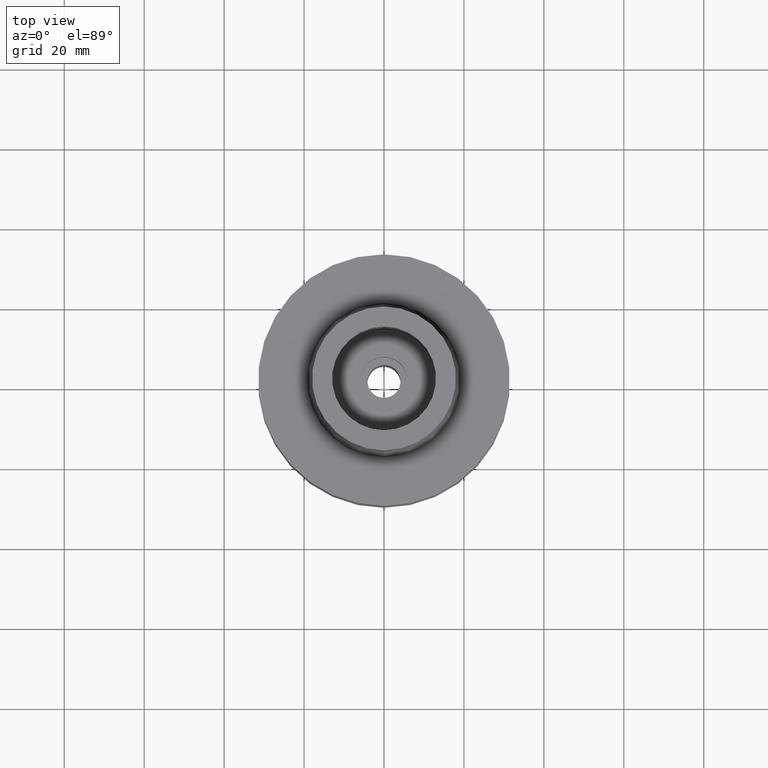
[diagram: clean part render]
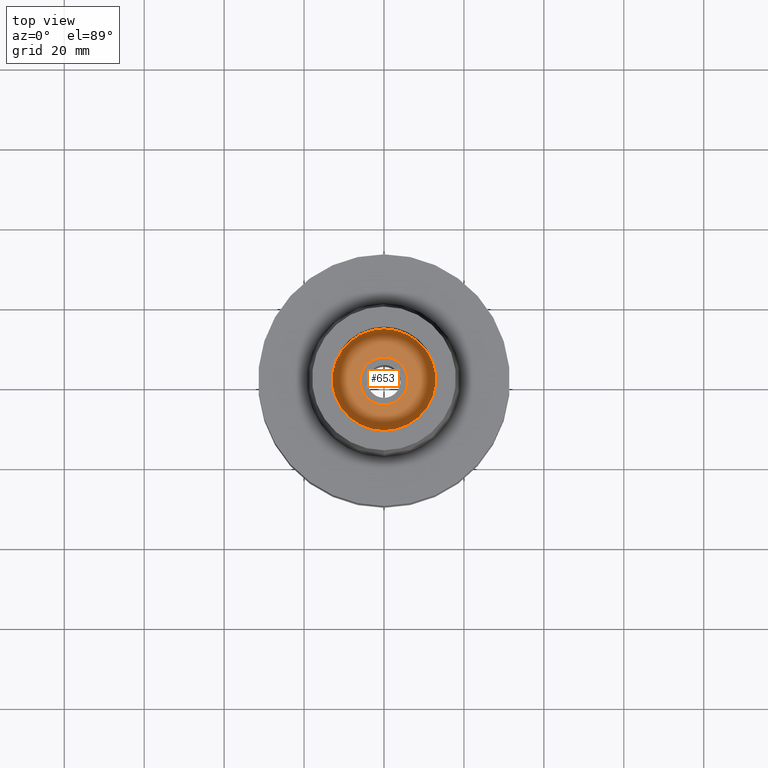
[diagram: same view with one face highlighted and labeled with its STEP entity id]
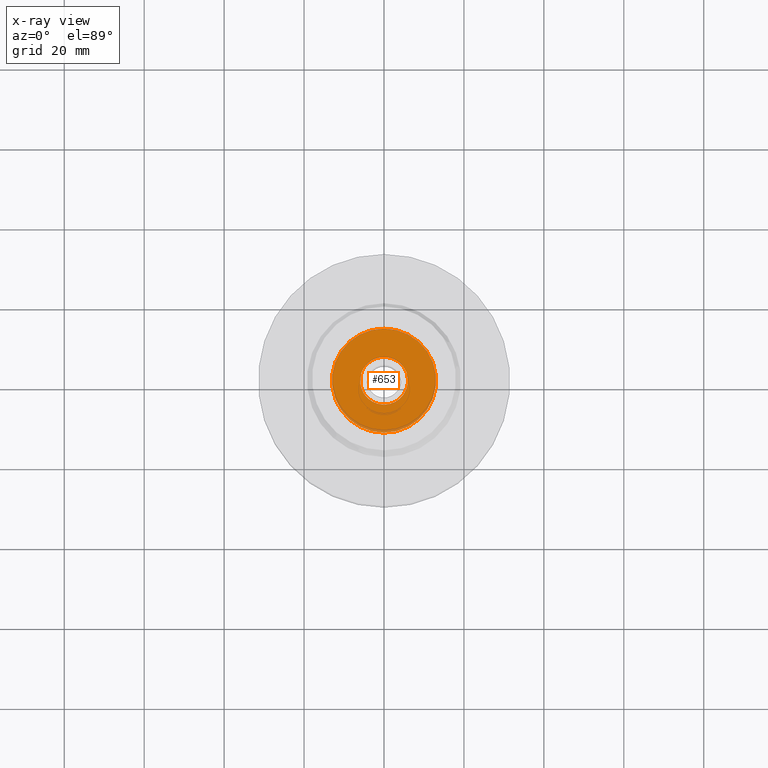
[diagram: x-ray of the same camera — body ghosted, the highlighted face saturated]
A machine part, top view. The second image highlights one B-rep face of the part: STEP entity #653.
The next image is the same camera in x-ray: the body ghosted, the highlighted face saturated — about 4% of this face is hidden behind the body in this view.
In plain terms, the highlighted planar face has unit normal (0, 0, 1).
Its self-contained STEP definition (entity closure, byte-faithful):
#135 = DIRECTION ( 'NONE',  ( 0.0000000000000000000, -1.000000000000000000, 0.0000000000000000000 ) ) ;
#226 = DIRECTION ( 'NONE',  ( 0.0000000000000000000, 0.0000000000000000000, -1.000000000000000000 ) ) ;
#442 = EDGE_CURVE ( 'NONE', #1269, #745, #1855, .T. ) ;
#449 = EDGE_LOOP ( 'NONE', ( #2460, #1671 ) ) ;
#585 = DIRECTION ( 'NONE',  ( 0.0000000000000000000, 0.0000000000000000000, 1.000000000000000000 ) ) ;
#653 = ADVANCED_FACE ( 'NONE', ( #2383, #2158 ), #1685, .T. ) ;
#659 = CARTESIAN_POINT ( 'NONE',  ( 0.0000000000000000000, -6.000000000000000000, -9.950000000000001066 ) ) ;
#745 = VERTEX_POINT ( 'NONE', #659 ) ;
#985 = AXIS2_PLACEMENT_3D ( 'NONE', #2570, #585, #2149 ) ;
#1075 = CARTESIAN_POINT ( 'NONE',  ( 0.0000000000000000000, 0.0000000000000000000, -9.950000000000001066 ) ) ;
#1100 = DIRECTION ( 'NONE',  ( 0.0000000000000000000, 1.000000000000000000, 0.0000000000000000000 ) ) ;
#1133 = DIRECTION ( 'NONE',  ( 0.0000000000000000000, 0.0000000000000000000, 1.000000000000000000 ) ) ;
#1200 = CIRCLE ( 'NONE', #2764, 13.00000000000000000 ) ;
#1221 = DIRECTION ( 'NONE',  ( 0.0000000000000000000, 1.000000000000000000, 0.0000000000000000000 ) ) ;
#1257 = DIRECTION ( 'NONE',  ( 0.0000000000000000000, 0.0000000000000000000, 1.000000000000000000 ) ) ;
#1269 = VERTEX_POINT ( 'NONE', #2065 ) ;
#1470 = DIRECTION ( 'NONE',  ( 0.0000000000000000000, 0.0000000000000000000, -1.000000000000000000 ) ) ;
#1492 = EDGE_CURVE ( 'NONE', #745, #1269, #2442, .T. ) ;
#1529 = CARTESIAN_POINT ( 'NONE',  ( 0.0000000000000000000, -13.00000000000000000, -9.950000000000001066 ) ) ;
#1671 = ORIENTED_EDGE ( 'NONE', *, *, #2485, .F. ) ;
#1685 = PLANE ( 'NONE',  #985 ) ;
#1740 = DIRECTION ( 'NONE',  ( 0.0000000000000000000, -1.000000000000000000, 0.0000000000000000000 ) ) ;
#1855 = CIRCLE ( 'NONE', #2172, 6.000000000000000000 ) ;
#2065 = CARTESIAN_POINT ( 'NONE',  ( 0.0000000000000000000, 6.000000000000000000, -9.950000000000001066 ) ) ;
#2115 = CARTESIAN_POINT ( 'NONE',  ( 0.0000000000000000000, 0.0000000000000000000, -9.950000000000001066 ) ) ;
#2149 = DIRECTION ( 'NONE',  ( 1.000000000000000000, 0.0000000000000000000, 0.0000000000000000000 ) ) ;
#2158 = FACE_BOUND ( 'NONE', #2408, .T. ) ;
#2172 = AXIS2_PLACEMENT_3D ( 'NONE', #2807, #1133, #1100 ) ;
#2185 = ORIENTED_EDGE ( 'NONE', *, *, #1492, .F. ) ;
#2254 = EDGE_CURVE ( 'NONE', #2712, #2335, #1200, .T. ) ;
#2317 = CARTESIAN_POINT ( 'NONE',  ( 0.0000000000000000000, 0.0000000000000000000, -9.950000000000001066 ) ) ;
#2335 = VERTEX_POINT ( 'NONE', #1529 ) ;
#2383 = FACE_OUTER_BOUND ( 'NONE', #449, .T. ) ;
#2408 = EDGE_LOOP ( 'NONE', ( #2556, #2185 ) ) ;
#2442 = CIRCLE ( 'NONE', #2811, 6.000000000000000000 ) ;
#2460 = ORIENTED_EDGE ( 'NONE', *, *, #2254, .F. ) ;
#2485 = EDGE_CURVE ( 'NONE', #2335, #2712, #2634, .T. ) ;
#2492 = AXIS2_PLACEMENT_3D ( 'NONE', #1075, #226, #1740 ) ;
#2556 = ORIENTED_EDGE ( 'NONE', *, *, #442, .F. ) ;
#2570 = CARTESIAN_POINT ( 'NONE',  ( 0.0000000000000000000, 0.0000000000000000000, -9.950000000000001066 ) ) ;
#2634 = CIRCLE ( 'NONE', #2492, 13.00000000000000000 ) ;
#2699 = CARTESIAN_POINT ( 'NONE',  ( 0.0000000000000000000, 13.00000000000000000, -9.950000000000001066 ) ) ;
#2712 = VERTEX_POINT ( 'NONE', #2699 ) ;
#2764 = AXIS2_PLACEMENT_3D ( 'NONE', #2317, #1470, #1221 ) ;
#2807 = CARTESIAN_POINT ( 'NONE',  ( 0.0000000000000000000, 0.0000000000000000000, -9.950000000000001066 ) ) ;
#2811 = AXIS2_PLACEMENT_3D ( 'NONE', #2115, #1257, #135 ) ;